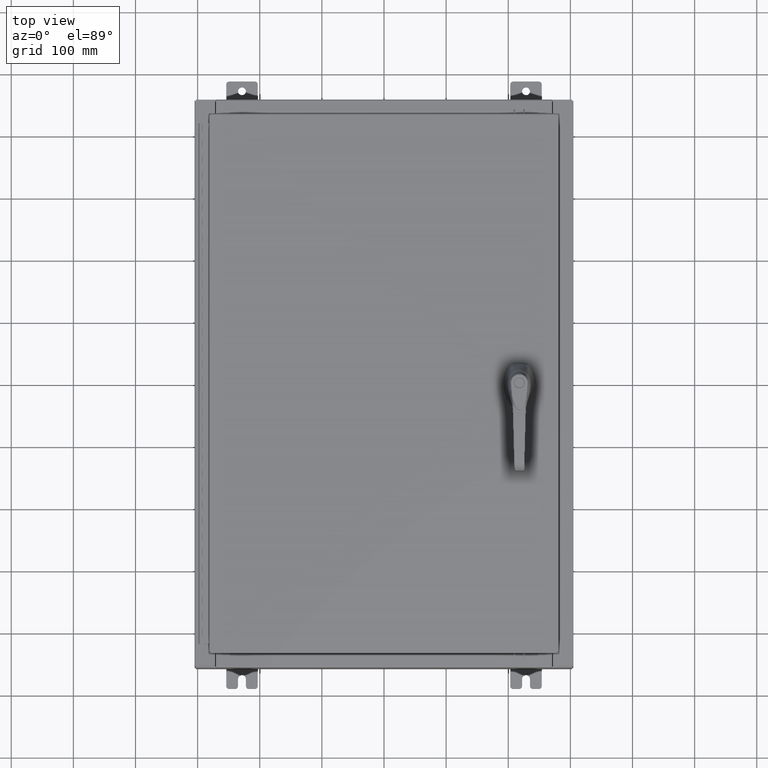
[diagram: clean part render]
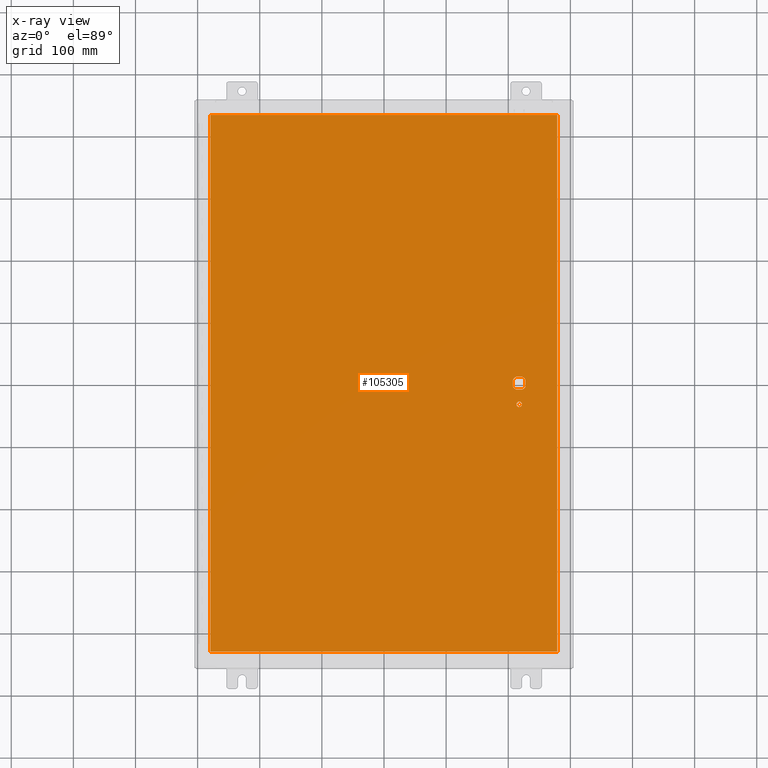
[diagram: x-ray — body ghosted, one internal face saturated and labeled with its STEP entity id]
A machine part, top view, then the same camera in x-ray: the body is ghosted and one INTERNAL B-rep face — a face not visible from any outside direction — is saturated and labeled: STEP entity #105305.
In plain terms, the highlighted planar face has unit normal (0, 0, -1).
Its self-contained STEP definition (entity closure, byte-faithful):
#615 = DIRECTION ( 'NONE',  ( -1.000000000000000000, 8.881784197001256300E-016, 0.0000000000000000000 ) ) ;
#1948 = EDGE_CURVE ( 'NONE', #71832, #34444, #43223, .T. ) ;
#2186 = CARTESIAN_POINT ( 'NONE',  ( 8.980999999999921700, -0.2002273707563075900, -0.07470000000000003000 ) ) ;
#2625 = DIRECTION ( 'NONE',  ( 0.0000000000000000000, -1.000000000000000000, 0.0000000000000000000 ) ) ;
#6605 = EDGE_LOOP ( 'NONE', ( #111457, #18978, #33053, #54931, #91180, #86115, #45318, #54500 ) ) ;
#7329 = EDGE_CURVE ( 'NONE', #119694, #71832, #112154, .T. ) ;
#12283 = CARTESIAN_POINT ( 'NONE',  ( 8.980999999999921700, 2.450686610769031800E-014, -0.07470000000000003000 ) ) ;
#13550 = CIRCLE ( 'NONE', #118583, 0.4499999999999156900 ) ;
#13783 = EDGE_CURVE ( 'NONE', #49083, #103969, #87781, .T. ) ;
#14396 = CARTESIAN_POINT ( 'NONE',  ( 0.0000000000000000000, 0.4029999999999252000, -0.07470000000000003000 ) ) ;
#15056 = LINE ( 'NONE', #51049, #62701 ) ;
#17507 = CARTESIAN_POINT ( 'NONE',  ( 8.577999999999995900, 0.0000000000000000000, -0.07470000000000003000 ) ) ;
#17627 = DIRECTION ( 'NONE',  ( -1.000000000000000000, 0.0000000000000000000, -0.0000000000000000000 ) ) ;
#17655 = ORIENTED_EDGE ( 'NONE', *, *, #48720, .T. ) ;
#18978 = ORIENTED_EDGE ( 'NONE', *, *, #45711, .F. ) ;
#19230 = DIRECTION ( 'NONE',  ( -0.0000000000000000000, -0.0000000000000000000, 1.000000000000000000 ) ) ;
#19382 = VERTEX_POINT ( 'NONE', #117232 ) ;
#20066 = DIRECTION ( 'NONE',  ( -0.0000000000000000000, -0.0000000000000000000, 1.000000000000000000 ) ) ;
#21452 = CIRCLE ( 'NONE', #42562, 0.1715000000000011500 ) ;
#23191 = CARTESIAN_POINT ( 'NONE',  ( -10.99030000000000000, -17.00629999999999600, -0.07470000000000019700 ) ) ;
#23572 = ORIENTED_EDGE ( 'NONE', *, *, #13783, .F. ) ;
#26455 = CARTESIAN_POINT ( 'NONE',  ( 8.778227370756305000, -0.4029999999999252000, -0.07470000000000003000 ) ) ;
#27181 = DIRECTION ( 'NONE',  ( -1.000000000000000000, 0.0000000000000000000, 0.0000000000000000000 ) ) ;
#28692 = EDGE_CURVE ( 'NONE', #30299, #82362, #21452, .T. ) ;
#30220 = AXIS2_PLACEMENT_3D ( 'NONE', #77012, #20066, #86559 ) ;
#30299 = VERTEX_POINT ( 'NONE', #95456 ) ;
#30689 = ORIENTED_EDGE ( 'NONE', *, *, #69190, .F. ) ;
#30943 = ORIENTED_EDGE ( 'NONE', *, *, #96903, .F. ) ;
#32819 = DIRECTION ( 'NONE',  ( 1.000000000000000000, -0.0000000000000000000, -0.0000000000000000000 ) ) ;
#33053 = ORIENTED_EDGE ( 'NONE', *, *, #7329, .T. ) ;
#33654 = VERTEX_POINT ( 'NONE', #97428 ) ;
#34346 = VECTOR ( 'NONE', #32819, 39.37007874015748100 ) ;
#34444 = VERTEX_POINT ( 'NONE', #105300 ) ;
#35320 = LINE ( 'NONE', #12283, #82767 ) ;
#41668 = VECTOR ( 'NONE', #89269, 39.37007874015748100 ) ;
#41675 = DIRECTION ( 'NONE',  ( -1.000000000000000000, -0.0000000000000000000, -0.0000000000000000000 ) ) ;
#41962 = CARTESIAN_POINT ( 'NONE',  ( 8.577999999999995900, -1.338000000000000100, -0.07470000000000003000 ) ) ;
#42562 = AXIS2_PLACEMENT_3D ( 'NONE', #41962, #108225, #51426 ) ;
#42687 = CARTESIAN_POINT ( 'NONE',  ( 8.406499999999994100, -1.338000000000000100, -0.07470000000000003000 ) ) ;
#43223 = LINE ( 'NONE', #14396, #109884 ) ;
#45028 = CARTESIAN_POINT ( 'NONE',  ( 10.99029999999999600, -17.00629999999999600, -0.07470000000000000300 ) ) ;
#45318 = ORIENTED_EDGE ( 'NONE', *, *, #94519, .T. ) ;
#45711 = EDGE_CURVE ( 'NONE', #119694, #67625, #35320, .T. ) ;
#46033 = VERTEX_POINT ( 'NONE', #26455 ) ;
#46282 = EDGE_LOOP ( 'NONE', ( #60744, #17655 ) ) ;
#48720 = EDGE_CURVE ( 'NONE', #82362, #30299, #76499, .T. ) ;
#49083 = VERTEX_POINT ( 'NONE', #112987 ) ;
#49243 = VERTEX_POINT ( 'NONE', #86548 ) ;
#51049 = CARTESIAN_POINT ( 'NONE',  ( 0.0000000000000000000, -0.4029999999999252000, -0.07470000000000003000 ) ) ;
#51426 = DIRECTION ( 'NONE',  ( -1.000000000000000000, 0.0000000000000000000, 0.0000000000000000000 ) ) ;
#53300 = CARTESIAN_POINT ( 'NONE',  ( -10.99030000000000100, 17.00630000000000700, -0.07470000000000000300 ) ) ;
#53552 = DIRECTION ( 'NONE',  ( -0.0000000000000000000, -0.0000000000000000000, 1.000000000000000000 ) ) ;
#54500 = ORIENTED_EDGE ( 'NONE', *, *, #116314, .T. ) ;
#54931 = ORIENTED_EDGE ( 'NONE', *, *, #1948, .T. ) ;
#55436 = CARTESIAN_POINT ( 'NONE',  ( 0.0000000000000000000, 0.0000000000000000000, -0.07470000000000000300 ) ) ;
#57777 = DIRECTION ( 'NONE',  ( -0.0000000000000000000, -0.0000000000000000000, 1.000000000000000000 ) ) ;
#57988 = AXIS2_PLACEMENT_3D ( 'NONE', #114538, #57777, #615 ) ;
#60603 = DIRECTION ( 'NONE',  ( 1.000000000000000000, 0.0000000000000000000, 0.0000000000000000000 ) ) ;
#60744 = ORIENTED_EDGE ( 'NONE', *, *, #28692, .T. ) ;
#62701 = VECTOR ( 'NONE', #60603, 39.37007874015748100 ) ;
#67625 = VERTEX_POINT ( 'NONE', #2186 ) ;
#67990 = FACE_OUTER_BOUND ( 'NONE', #119100, .T. ) ;
#68873 = LINE ( 'NONE', #92776, #110272 ) ;
#69190 = EDGE_CURVE ( 'NONE', #96411, #49083, #68873, .T. ) ;
#70172 = CARTESIAN_POINT ( 'NONE',  ( 10.99029999999999600, -17.00629999999999200, -0.07470000000000019700 ) ) ;
#70949 = FACE_BOUND ( 'NONE', #6605, .T. ) ;
#71832 = VERTEX_POINT ( 'NONE', #90674 ) ;
#74607 = DIRECTION ( 'NONE',  ( 0.0000000000000000000, 0.0000000000000000000, -1.000000000000000000 ) ) ;
#76193 = CARTESIAN_POINT ( 'NONE',  ( 8.577999999999995900, 0.0000000000000000000, -0.07470000000000003000 ) ) ;
#76434 = CARTESIAN_POINT ( 'NONE',  ( 8.980999999999921700, 0.2002273707563080300, -0.07470000000000003000 ) ) ;
#76499 = CIRCLE ( 'NONE', #30220, 0.1715000000000011500 ) ;
#77012 = CARTESIAN_POINT ( 'NONE',  ( 8.577999999999995900, -1.338000000000000100, -0.07470000000000003000 ) ) ;
#78344 = CIRCLE ( 'NONE', #57988, 0.4499999999999156900 ) ;
#78851 = DIRECTION ( 'NONE',  ( 2.728745808672812900E-015, -1.000000000000000000, 0.0000000000000000000 ) ) ;
#82362 = VERTEX_POINT ( 'NONE', #42687 ) ;
#82767 = VECTOR ( 'NONE', #78851, 39.37007874015748100 ) ;
#84039 = DIRECTION ( 'NONE',  ( -0.0000000000000000000, -0.0000000000000000000, 1.000000000000000000 ) ) ;
#84745 = LINE ( 'NONE', #116524, #100966 ) ;
#85716 = DIRECTION ( 'NONE',  ( -1.000000000000000000, 1.776356839400251300E-015, 0.0000000000000000000 ) ) ;
#86115 = ORIENTED_EDGE ( 'NONE', *, *, #118297, .T. ) ;
#86548 = CARTESIAN_POINT ( 'NONE',  ( 10.99029999999999600, 17.00630000000000700, -0.07470000000000000300 ) ) ;
#86559 = DIRECTION ( 'NONE',  ( -1.000000000000000000, 0.0000000000000000000, 0.0000000000000000000 ) ) ;
#87781 = LINE ( 'NONE', #23191, #34346 ) ;
#89269 = DIRECTION ( 'NONE',  ( 0.0000000000000000000, 1.000000000000000000, 0.0000000000000000000 ) ) ;
#90674 = CARTESIAN_POINT ( 'NONE',  ( 8.778227370756305000, 0.4029999999999250300, -0.07470000000000003000 ) ) ;
#91180 = ORIENTED_EDGE ( 'NONE', *, *, #100160, .T. ) ;
#92776 = CARTESIAN_POINT ( 'NONE',  ( -10.99030000000000500, 17.00630000000000700, -0.07470000000000347200 ) ) ;
#93174 = DIRECTION ( 'NONE',  ( 0.0000000000000000000, -1.000000000000000000, 0.0000000000000000000 ) ) ;
#94274 = VECTOR ( 'NONE', #41675, 39.37007874015748100 ) ;
#94519 = EDGE_CURVE ( 'NONE', #33654, #100818, #78344, .T. ) ;
#95456 = CARTESIAN_POINT ( 'NONE',  ( 8.749499999999997600, -1.338000000000000100, -0.07470000000000003000 ) ) ;
#96411 = VERTEX_POINT ( 'NONE', #53300 ) ;
#96903 = EDGE_CURVE ( 'NONE', #49243, #96411, #119408, .T. ) ;
#97428 = CARTESIAN_POINT ( 'NONE',  ( 8.175000000000070000, -0.2002273707563079800, -0.07470000000000003000 ) ) ;
#100160 = EDGE_CURVE ( 'NONE', #34444, #19382, #13550, .T. ) ;
#100818 = VERTEX_POINT ( 'NONE', #121484 ) ;
#100966 = VECTOR ( 'NONE', #2625, 39.37007874015748100 ) ;
#101949 = ORIENTED_EDGE ( 'NONE', *, *, #118482, .F. ) ;
#102708 = PLANE ( 'NONE',  #115665 ) ;
#103969 = VERTEX_POINT ( 'NONE', #45028 ) ;
#105300 = CARTESIAN_POINT ( 'NONE',  ( 8.377772629243686700, 0.4029999999999252000, -0.07470000000000003000 ) ) ;
#105305 = ADVANCED_FACE ( 'NONE', ( #118310, #67990, #70949 ), #102708, .T. ) ;
#108225 = DIRECTION ( 'NONE',  ( -0.0000000000000000000, -0.0000000000000000000, 1.000000000000000000 ) ) ;
#109884 = VECTOR ( 'NONE', #122263, 39.37007874015748100 ) ;
#110272 = VECTOR ( 'NONE', #93174, 39.37007874015748100 ) ;
#110348 = CARTESIAN_POINT ( 'NONE',  ( 8.577999999999995900, 0.0000000000000000000, -0.07470000000000003000 ) ) ;
#111457 = ORIENTED_EDGE ( 'NONE', *, *, #113980, .T. ) ;
#112154 = CIRCLE ( 'NONE', #119237, 0.4499999999999156900 ) ;
#112987 = CARTESIAN_POINT ( 'NONE',  ( -10.99030000000000000, -17.00629999999999600, -0.07470000000000000300 ) ) ;
#113980 = EDGE_CURVE ( 'NONE', #46033, #67625, #114436, .T. ) ;
#114436 = CIRCLE ( 'NONE', #121714, 0.4499999999999156900 ) ;
#114538 = CARTESIAN_POINT ( 'NONE',  ( 8.577999999999995900, 0.0000000000000000000, -0.07470000000000003000 ) ) ;
#115665 = AXIS2_PLACEMENT_3D ( 'NONE', #55436, #74607, #17627 ) ;
#116314 = EDGE_CURVE ( 'NONE', #100818, #46033, #15056, .T. ) ;
#116524 = CARTESIAN_POINT ( 'NONE',  ( 8.175000000000070000, 0.0000000000000000000, -0.07470000000000003000 ) ) ;
#117232 = CARTESIAN_POINT ( 'NONE',  ( 8.175000000000070000, 0.2002273707563080300, -0.07470000000000003000 ) ) ;
#117455 = CARTESIAN_POINT ( 'NONE',  ( 10.99029999999999800, 17.00630000000000700, -0.07470000000000019700 ) ) ;
#118297 = EDGE_CURVE ( 'NONE', #19382, #33654, #84745, .T. ) ;
#118310 = FACE_BOUND ( 'NONE', #46282, .T. ) ;
#118482 = EDGE_CURVE ( 'NONE', #103969, #49243, #120220, .T. ) ;
#118583 = AXIS2_PLACEMENT_3D ( 'NONE', #110348, #53552, #119898 ) ;
#119100 = EDGE_LOOP ( 'NONE', ( #101949, #23572, #30689, #30943 ) ) ;
#119237 = AXIS2_PLACEMENT_3D ( 'NONE', #17507, #84039, #27181 ) ;
#119408 = LINE ( 'NONE', #117455, #94274 ) ;
#119694 = VERTEX_POINT ( 'NONE', #76434 ) ;
#119898 = DIRECTION ( 'NONE',  ( -1.000000000000000000, 0.0000000000000000000, 0.0000000000000000000 ) ) ;
#120220 = LINE ( 'NONE', #70172, #41668 ) ;
#121484 = CARTESIAN_POINT ( 'NONE',  ( 8.377772629243686700, -0.4029999999999250300, -0.07470000000000003000 ) ) ;
#121714 = AXIS2_PLACEMENT_3D ( 'NONE', #76193, #19230, #85716 ) ;
#122263 = DIRECTION ( 'NONE',  ( -1.000000000000000000, 0.0000000000000000000, 0.0000000000000000000 ) ) ;